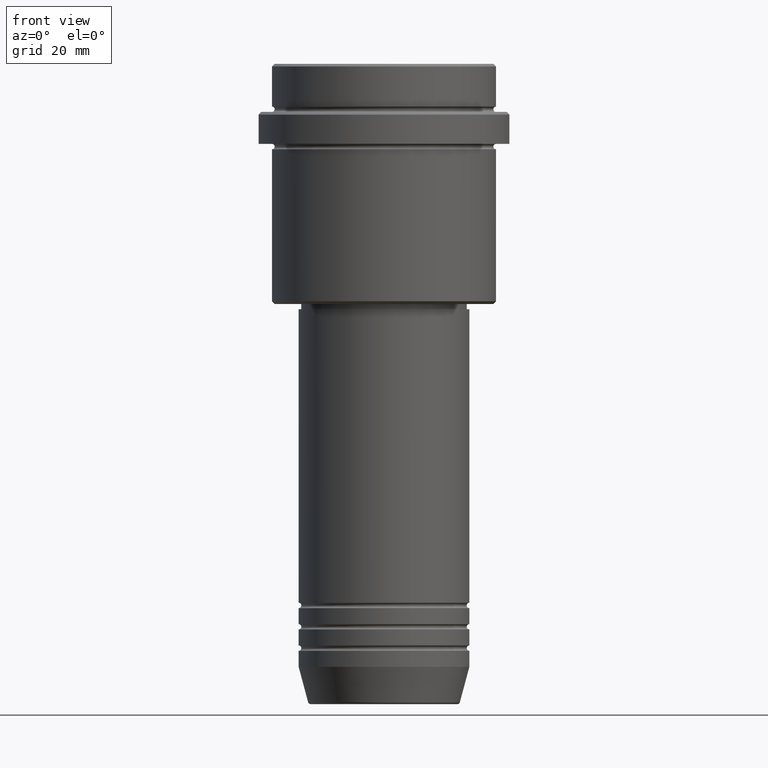
[diagram: clean part render]
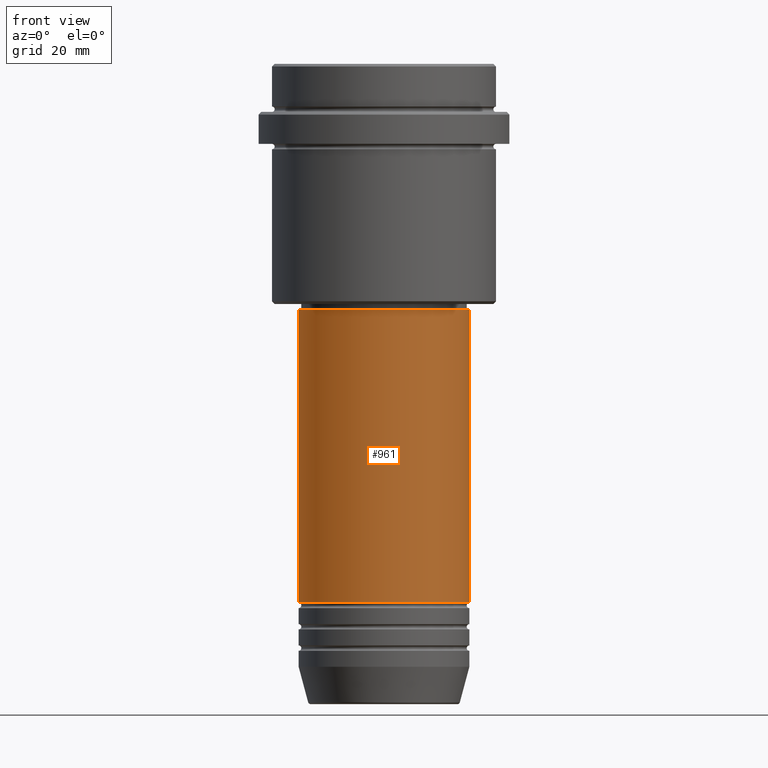
[diagram: same view with one face highlighted and labeled with its STEP entity id]
A machine part, front view. The second image highlights one B-rep face of the part: STEP entity #961.
In plain terms, the highlighted cylindrical surface (partial cylindrical patch) has radius 16 mm, axis along (-0, -0, 1).
Its self-contained STEP definition (entity closure, byte-faithful):
#20 = CARTESIAN_POINT ( 'NONE',  ( 0.000000000000000000, 0.000000000000000000, -45.99999999999997868 ) ) ;
#98 = LINE ( 'NONE', #1076, #617 ) ;
#102 = CIRCLE ( 'NONE', #777, 16.00000000000000000 ) ;
#114 = EDGE_CURVE ( 'NONE', #714, #1162, #1402, .T. ) ;
#162 = CARTESIAN_POINT ( 'NONE',  ( 16.00000000000000000, 0.000000000000000000, -100.9999999999998721 ) ) ;
#262 = DIRECTION ( 'NONE',  ( 1.000000000000000000, 0.000000000000000000, 0.000000000000000000 ) ) ;
#271 = AXIS2_PLACEMENT_3D ( 'NONE', #1182, #861, #1307 ) ;
#274 = ORIENTED_EDGE ( 'NONE', *, *, #907, .F. ) ;
#280 = CARTESIAN_POINT ( 'NONE',  ( 0.000000000000000000, 0.000000000000000000, -100.9999999999998721 ) ) ;
#384 = DIRECTION ( 'NONE',  ( -0.000000000000000000, -0.000000000000000000, 1.000000000000000000 ) ) ;
#385 = DIRECTION ( 'NONE',  ( 1.000000000000000000, 0.000000000000000000, 0.000000000000000000 ) ) ;
#490 = VERTEX_POINT ( 'NONE', #1250 ) ;
#501 = DIRECTION ( 'NONE',  ( -0.000000000000000000, -0.000000000000000000, 1.000000000000000000 ) ) ;
#569 = EDGE_LOOP ( 'NONE', ( #1064, #817, #587, #274 ) ) ;
#587 = ORIENTED_EDGE ( 'NONE', *, *, #114, .T. ) ;
#606 = EDGE_CURVE ( 'NONE', #700, #490, #98, .T. ) ;
#617 = VECTOR ( 'NONE', #1299, 1000.000000000000000 ) ;
#645 = CARTESIAN_POINT ( 'NONE',  ( 16.00000000000000000, 0.000000000000000000, 0.000000000000000000 ) ) ;
#700 = VERTEX_POINT ( 'NONE', #915 ) ;
#714 = VERTEX_POINT ( 'NONE', #162 ) ;
#765 = CARTESIAN_POINT ( 'NONE',  ( 16.00000000000000355, 0.000000000000000000, -45.99999999999997868 ) ) ;
#777 = AXIS2_PLACEMENT_3D ( 'NONE', #280, #501, #385 ) ;
#786 = CIRCLE ( 'NONE', #855, 16.00000000000000355 ) ;
#817 = ORIENTED_EDGE ( 'NONE', *, *, #1346, .T. ) ;
#829 = VECTOR ( 'NONE', #1308, 1000.000000000000000 ) ;
#848 = CYLINDRICAL_SURFACE ( 'NONE', #271, 16.00000000000000000 ) ;
#855 = AXIS2_PLACEMENT_3D ( 'NONE', #20, #384, #262 ) ;
#861 = DIRECTION ( 'NONE',  ( -0.000000000000000000, -0.000000000000000000, 1.000000000000000000 ) ) ;
#867 = FACE_OUTER_BOUND ( 'NONE', #569, .T. ) ;
#907 = EDGE_CURVE ( 'NONE', #490, #1162, #786, .T. ) ;
#915 = CARTESIAN_POINT ( 'NONE',  ( -16.00000000000000000, 1.959434878635765131E-15, -100.9999999999998721 ) ) ;
#961 = ADVANCED_FACE ( 'NONE', ( #867 ), #848, .T. ) ;
#1064 = ORIENTED_EDGE ( 'NONE', *, *, #606, .F. ) ;
#1076 = CARTESIAN_POINT ( 'NONE',  ( -16.00000000000000000, 1.959434878635765131E-15, 0.000000000000000000 ) ) ;
#1162 = VERTEX_POINT ( 'NONE', #765 ) ;
#1182 = CARTESIAN_POINT ( 'NONE',  ( 0.000000000000000000, 0.000000000000000000, 0.000000000000000000 ) ) ;
#1250 = CARTESIAN_POINT ( 'NONE',  ( -16.00000000000000355, 1.959434878635765526E-15, -45.99999999999997868 ) ) ;
#1299 = DIRECTION ( 'NONE',  ( -0.000000000000000000, -0.000000000000000000, 1.000000000000000000 ) ) ;
#1307 = DIRECTION ( 'NONE',  ( 1.000000000000000000, 0.000000000000000000, 0.000000000000000000 ) ) ;
#1308 = DIRECTION ( 'NONE',  ( -0.000000000000000000, -0.000000000000000000, 1.000000000000000000 ) ) ;
#1346 = EDGE_CURVE ( 'NONE', #700, #714, #102, .T. ) ;
#1402 = LINE ( 'NONE', #645, #829 ) ;